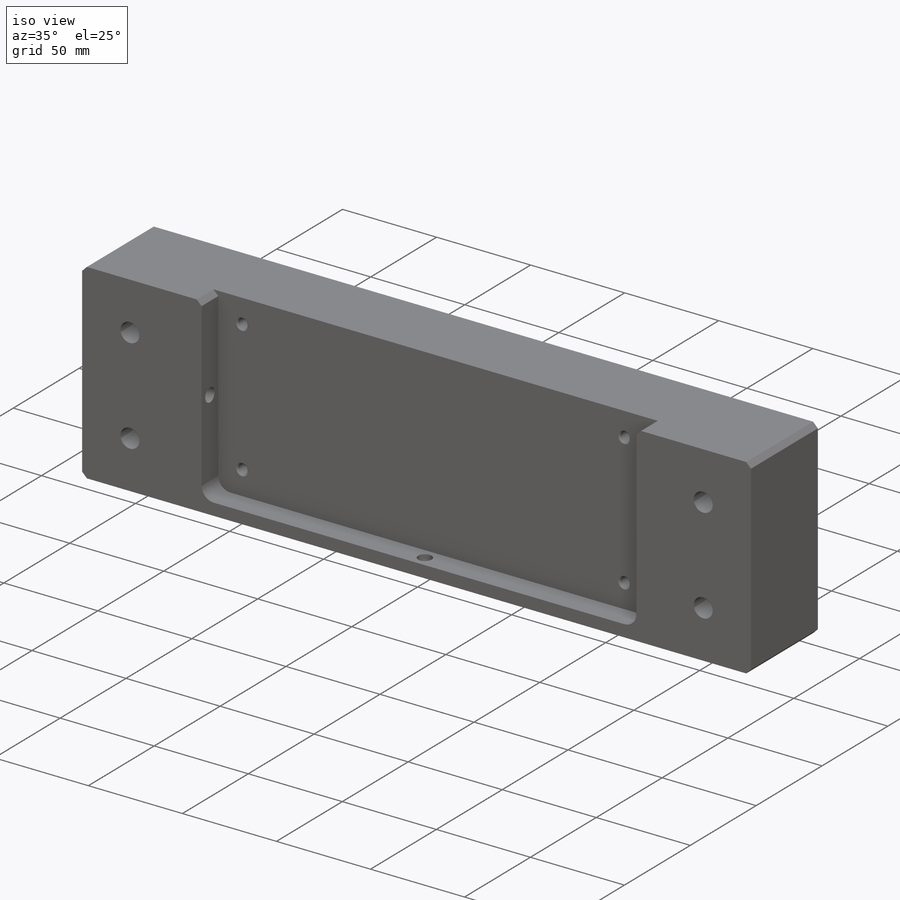
[diagram: iso view]
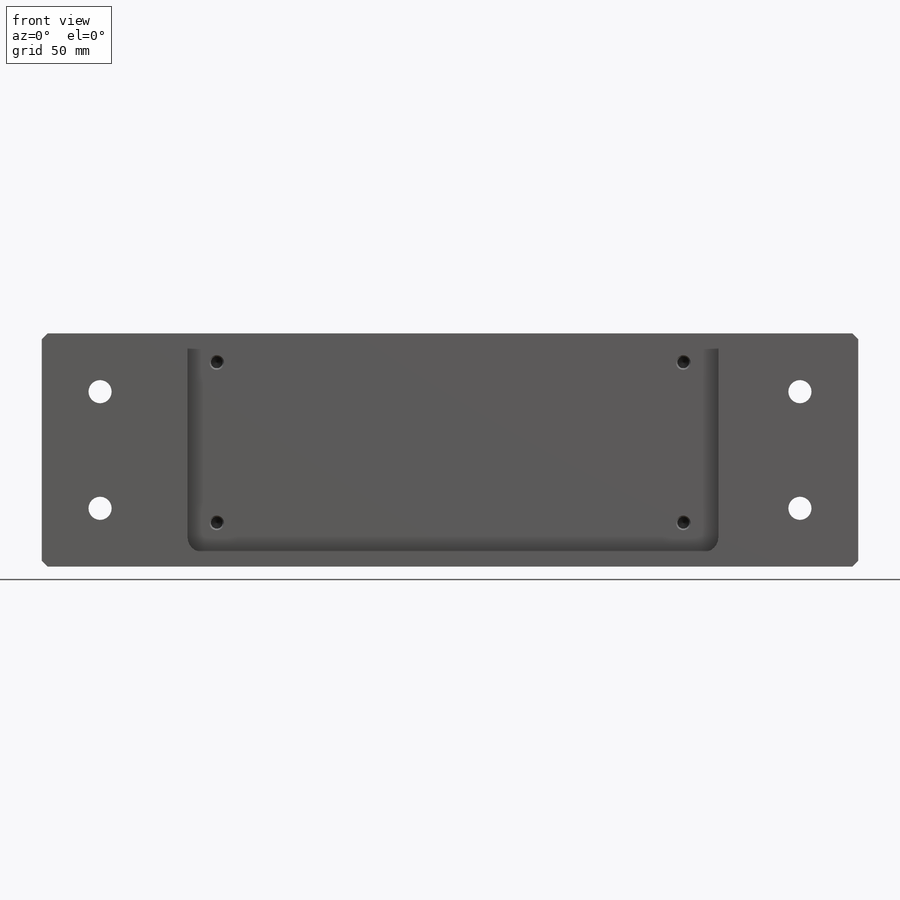
[diagram: front view]
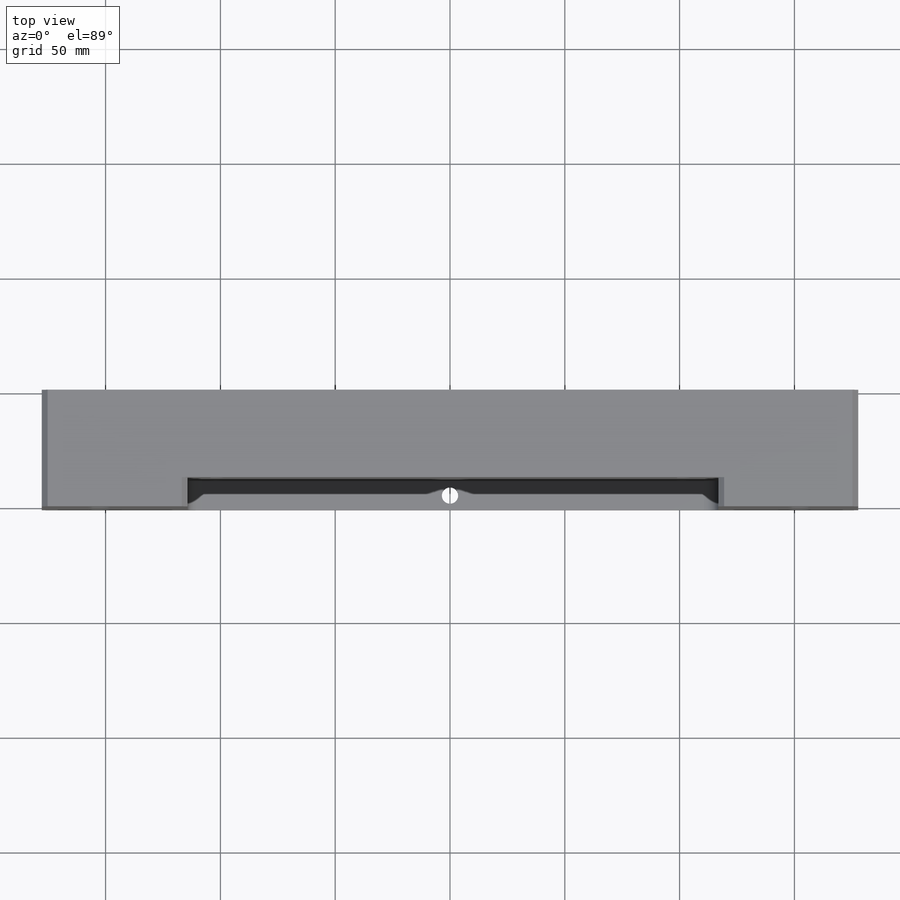
[diagram: top view]
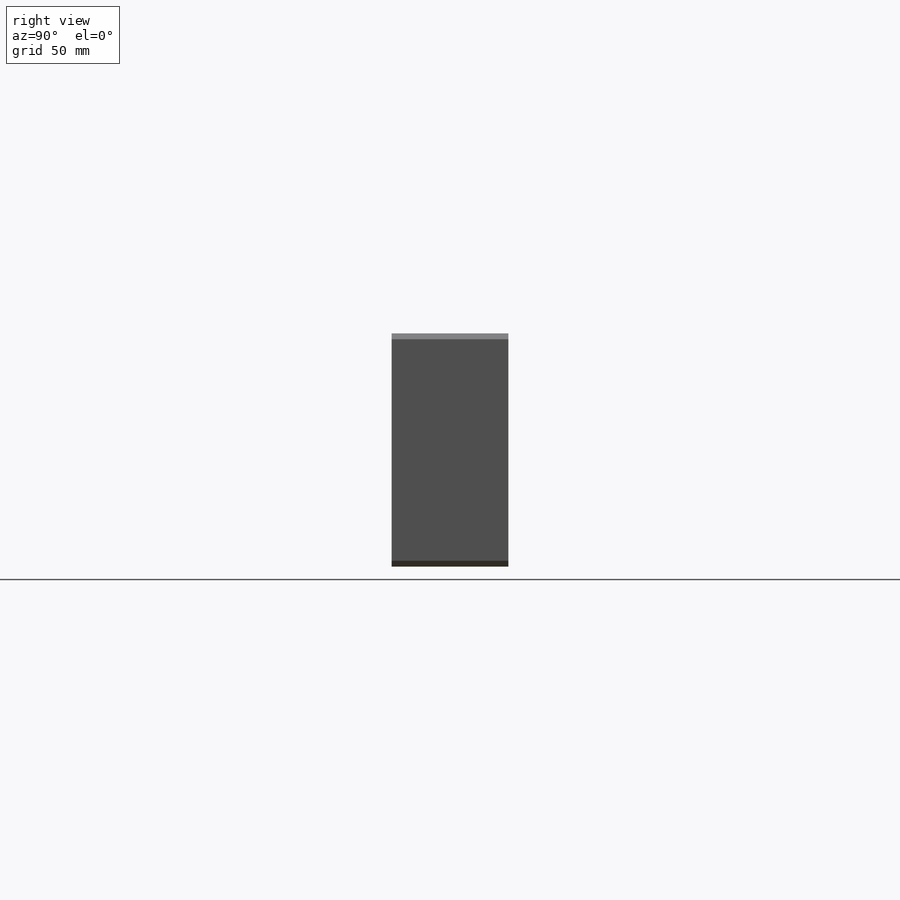
[diagram: right view]
SOLIDWORKS PART (.sldprt)
format: sldprt  version: not decoded by parser v0  size: 435,712 bytes
history: native  units: mm
features: sketch x10, hole x4, pattern_linear x2, material x1, extrude x1, cut_extrude x1, fillet x1, thread x1, chamfer x1 + 1 further entry (+13 scaffold rows collapsed)
feature tree (36):
  scaffold x13  (default folders/planes/origin — collapsed)
  material  "6061 Alloy"
  "Origin"  ID=-1
  sketch  "Sketch1"  dims[c1.D1=254.0mm c1.D2=76.2mm c2.D1=355.6mm c2.D2=101.6mm]
  extrude  "Extrude1"  Depth=50.8mm
  sketch  "Sketch6"  dims[c1.D1=114.3mm c1.D2=95.25mm c1.D3=231.14mm c2.D1=114.3mm]
  cut_extrude  "Extrude2"  Depth=12.7mm
  fillet  "Fillet1"  Radius=6.35mm
  hole  "1/4-20 Tapped Hole1"  [1 undecoded]
  sketch  "Sketch8"  dims[D1=101.6mm D2=31.75mm]
  thread  "Hole Thread1"  Diameter=10.16mm  [1 undecoded]
  sketch  "Sketch7"  dims[hole-wizard template sketch: 40 standard entries collapsed; hole parameters kept: c13.Tap Drill Depth=13.97mm c13.Near C'Sink Dia.=6.3754mm c13.D4=~33.297463mm c13.Near C'Sink Angle=90.0deg c14.D5=~14.816244mm c14.Drill Angle=118.0deg]
  pattern_linear  "LPattern3"  Count1=2 Count2=2 Spacing1=203.2mm Spacing2=69.85mm
  hole  "1/4 Clearance Hole2"  Diameter=7.14248mm Depth=63.5mm
  sketch  "Sketch11"  dims[D1=44.45mm D2=3.175mm]
  sketch  "Sketch10"  dims[hole-wizard template sketch: 60 standard entries collapsed; hole parameters kept: c18.Thru Hole Depth=63.5mm]
  hole  "1/4 Clearance Hole1"  Diameter=7.14248mm Depth=101.6mm
  sketch  "Sketch13"  dims[D1=44.45mm D2=19.05mm]
  sketch  "Sketch12"  dims[hole-wizard template sketch: 60 standard entries collapsed; hole parameters kept: c18.Thru Hole Depth=101.6mm]
  hole  "CBORE for 3/8 Socket Head Cap Screw1"  Diameter=10.0838mm Depth=50.8mm
  sketch  "Sketch15"  dims[D1=152.4mm D2=25.4mm]
  sketch  "Sketch14"  dims[hole-wizard template sketch: 42 standard entries collapsed; hole parameters kept: c12.Thru Hole Depth=50.8mm c12.C'Bore Dia.=15.875mm c12.C'Bore Depth=9.525mm c12.Near C'Sink Dia.=17.145mm c12.D6=~4.399409mm c12.Near C'Sink Angle=90.0deg]
  pattern_linear  "LPattern4"  Count1=2 Count2=2 Spacing1=50.8mm Spacing2=304.8mm
  chamfer  "Chamfer1"  Distance=2.54mm Angle=45deg
decode coverage: 20 of 21 modeling features carry decoded parameters; 1 rows unclassified (native names shown)
note: ~ marks probable driven/reference dimensions
note: 2 parameter values undecoded
summary: Diameter pulled from absorbed wizard sketch
note: suppression state not decoded; provenance and decode notes live in map.json
